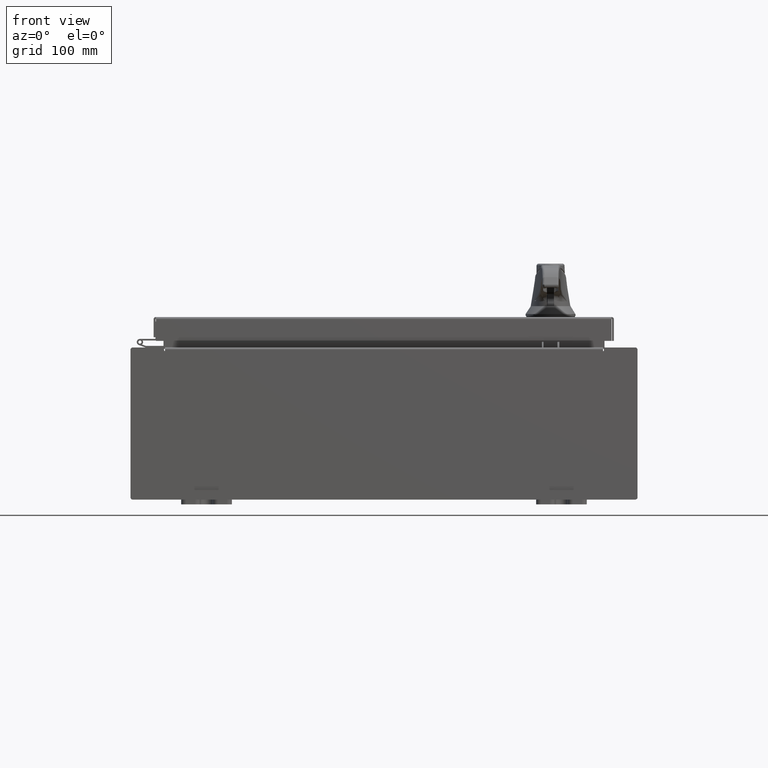
[diagram: clean part render]
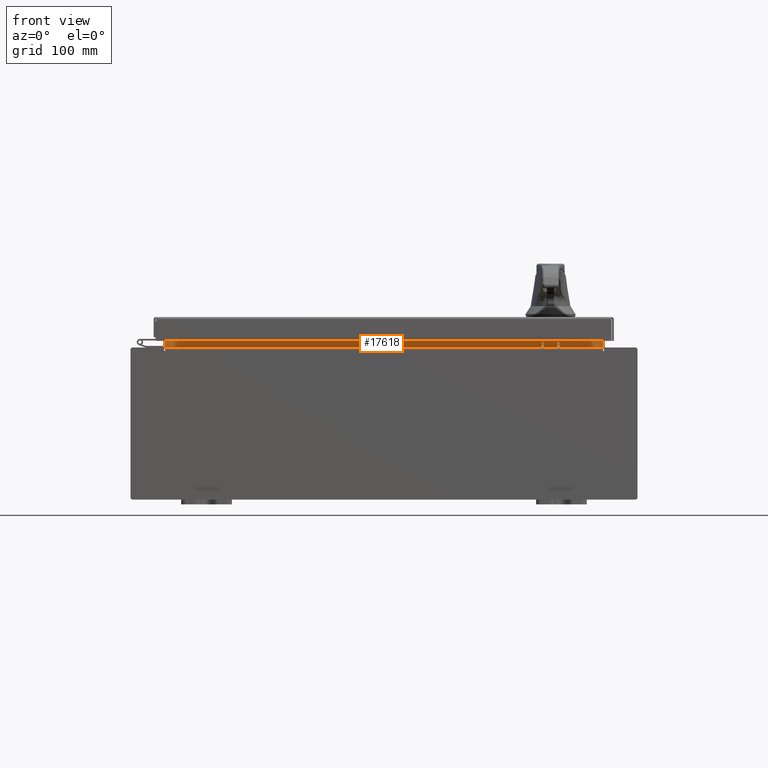
[diagram: same view with one face highlighted and labeled with its STEP entity id]
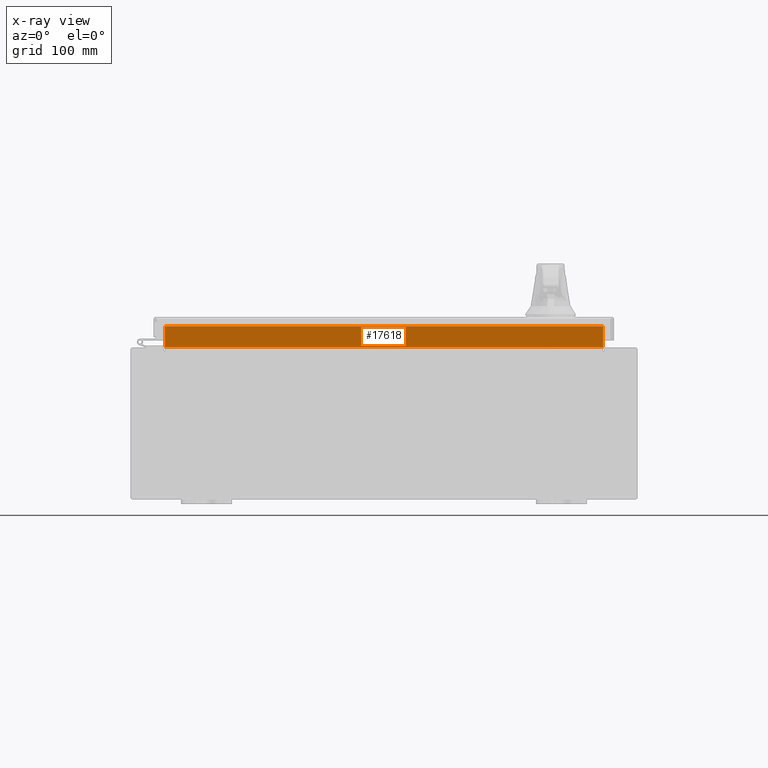
[diagram: x-ray of the same camera — body ghosted, the highlighted face saturated]
A machine part, front view. The second image highlights one B-rep face of the part: STEP entity #17618.
The next image is the same camera in x-ray: the body ghosted, the highlighted face saturated — about 0% of this face is hidden behind the body in this view.
In plain terms, the highlighted planar face has unit normal (0, -1, 0).
Its self-contained STEP definition (entity closure, byte-faithful):
#2123 = VECTOR ( 'NONE', #56680, 39.37007874015748100 ) ;
#13603 = CARTESIAN_POINT ( 'NONE',  ( 0.0000000000000000000, -1.300299999999999800, 0.0000000000000000000 ) ) ;
#14033 = EDGE_CURVE ( 'NONE', #29705, #50615, #107007, .T. ) ;
#17618 = ADVANCED_FACE ( 'NONE', ( #83232 ), #30168, .T. ) ;
#19082 = LINE ( 'NONE', #60936, #82588 ) ;
#25259 = ORIENTED_EDGE ( 'NONE', *, *, #14033, .F. ) ;
#29705 = VERTEX_POINT ( 'NONE', #89292 ) ;
#30168 = PLANE ( 'NONE',  #97206 ) ;
#32169 = ORIENTED_EDGE ( 'NONE', *, *, #54332, .F. ) ;
#34669 = CARTESIAN_POINT ( 'NONE',  ( 8.637200000000000000, -1.300299999999999800, 3.925300000000005300 ) ) ;
#38481 = DIRECTION ( 'NONE',  ( 0.0000000000000000000, 1.000000000000000000, 0.0000000000000000000 ) ) ;
#40771 = VERTEX_POINT ( 'NONE', #42131 ) ;
#40889 = LINE ( 'NONE', #66702, #60114 ) ;
#42131 = CARTESIAN_POINT ( 'NONE',  ( 8.637200000000000000, -1.300299999999999800, 3.837600000000005000 ) ) ;
#44996 = ORIENTED_EDGE ( 'NONE', *, *, #79639, .F. ) ;
#50278 = EDGE_LOOP ( 'NONE', ( #32169, #44996, #83512, #25259 ) ) ;
#50615 = VERTEX_POINT ( 'NONE', #99445 ) ;
#54332 = EDGE_CURVE ( 'NONE', #106116, #29705, #19082, .T. ) ;
#56680 = DIRECTION ( 'NONE',  ( 1.000000000000000000, 0.0000000000000000000, -6.325772226333218300E-017 ) ) ;
#60114 = VECTOR ( 'NONE', #92046, 39.37007874015748100 ) ;
#60936 = CARTESIAN_POINT ( 'NONE',  ( -8.637200000000000000, -1.300299999999999800, 3.000000000000005300 ) ) ;
#61966 = EDGE_CURVE ( 'NONE', #50615, #40771, #72593, .T. ) ;
#66702 = CARTESIAN_POINT ( 'NONE',  ( 8.637200000000000000, -1.300300000000000000, 3.837600000000005000 ) ) ;
#72593 = LINE ( 'NONE', #34669, #80488 ) ;
#79639 = EDGE_CURVE ( 'NONE', #40771, #106116, #40889, .T. ) ;
#80488 = VECTOR ( 'NONE', #92766, 39.37007874015748100 ) ;
#82588 = VECTOR ( 'NONE', #94668, 39.37007874015748100 ) ;
#83232 = FACE_OUTER_BOUND ( 'NONE', #50278, .T. ) ;
#83512 = ORIENTED_EDGE ( 'NONE', *, *, #61966, .F. ) ;
#89144 = CARTESIAN_POINT ( 'NONE',  ( -8.637200000000000000, -1.300299999999999800, 3.013000000000005200 ) ) ;
#89292 = CARTESIAN_POINT ( 'NONE',  ( -8.637200000000000000, -1.300299999999999800, 3.013000000000004800 ) ) ;
#92046 = DIRECTION ( 'NONE',  ( -1.000000000000000000, -0.0000000000000000000, -0.0000000000000000000 ) ) ;
#92766 = DIRECTION ( 'NONE',  ( -0.0000000000000000000, -0.0000000000000000000, 1.000000000000000000 ) ) ;
#93419 = CARTESIAN_POINT ( 'NONE',  ( -8.637200000000000000, -1.300300000000000000, 3.837600000000005000 ) ) ;
#94668 = DIRECTION ( 'NONE',  ( -0.0000000000000000000, -0.0000000000000000000, -1.000000000000000000 ) ) ;
#96609 = DIRECTION ( 'NONE',  ( 0.0000000000000000000, -0.0000000000000000000, 1.000000000000000000 ) ) ;
#97206 = AXIS2_PLACEMENT_3D ( 'NONE', #13603, #38481, #96609 ) ;
#99445 = CARTESIAN_POINT ( 'NONE',  ( 8.637199999999996400, -1.300299999999999800, 3.013000000000004800 ) ) ;
#106116 = VERTEX_POINT ( 'NONE', #93419 ) ;
#107007 = LINE ( 'NONE', #89144, #2123 ) ;